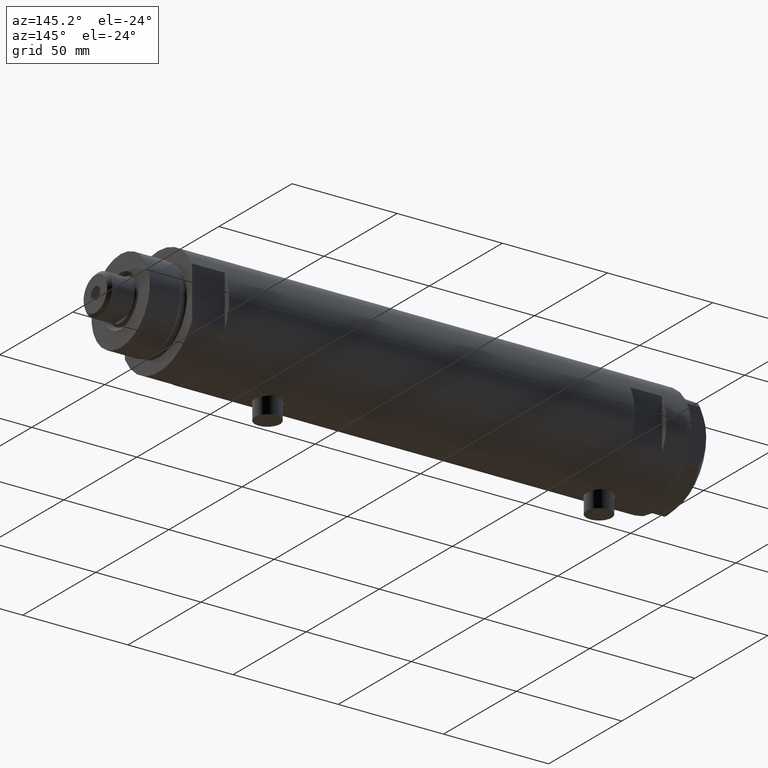
[diagram: clean part render]
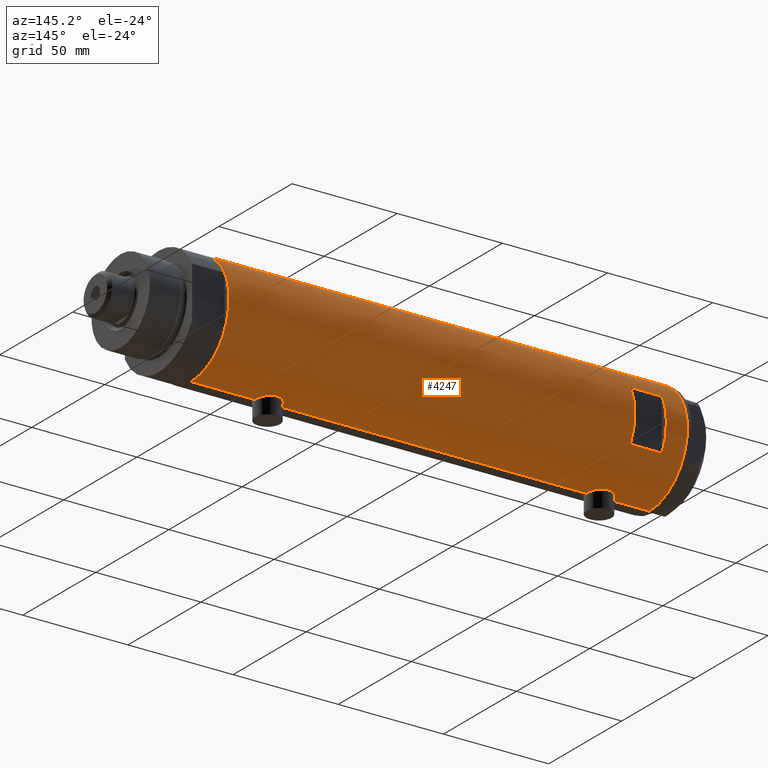
[diagram: same view with one face highlighted and labeled with its STEP entity id]
A machine part, auxiliary view. The second image highlights one B-rep face of the part: STEP entity #4247.
In plain terms, the highlighted cylindrical surface (partial cylindrical patch) has radius 26 mm, axis along (-1, -0, 0).
Its self-contained STEP definition (entity closure, byte-faithful):
#18 = CARTESIAN_POINT ( 'NONE',  ( 25.27545867390324474, 6.096774941222101951, 93.82477406957971766 ) ) ;
#21 = CARTESIAN_POINT ( 'NONE',  ( 26.00000000000000355, -3.975030973907779525E-20, 96.95000000000000284 ) ) ;
#42 = DIRECTION ( 'NONE',  ( 0.000000000000000000, 0.000000000000000000, 1.000000000000000000 ) ) ;
#49 = VERTEX_POINT ( 'NONE', #1653 ) ;
#50 = CARTESIAN_POINT ( 'NONE',  ( 25.59528664075983428, 4.573671112500310443, 83.50090496483274194 ) ) ;
#94 = CARTESIAN_POINT ( 'NONE',  ( 25.98255381630416849, 0.9836221648041321153, 96.88933098058195981 ) ) ;
#99 = ORIENTED_EDGE ( 'NONE', *, *, #4797, .F. ) ;
#133 = CARTESIAN_POINT ( 'NONE',  ( -25.99759026373432391, 0.4091325989570679389, 78.71000109955099333 ) ) ;
#153 = CARTESIAN_POINT ( 'NONE',  ( -25.43062364804611875, 5.412314182902751902, 81.81772351419066069 ) ) ;
#175 = B_SPLINE_CURVE_WITH_KNOTS ( 'NONE', 3,
 ( #3547, #180, #1290, #890, #3900, #861, #4341, #2826, #1362, #4686, #596, #529, #2093, #922, #3600, #1992, #2020, #4319, #1628, #501, #2350, #2372, #3175, #3946, #2415, #2045, #3525, #153, #1724, #4637, #1648, #1321, #2441, #3124, #4295, #943, #3971, #2395, #1271, #574, #3148, #133, #4661, #2066 ),
 .UNSPECIFIED., .F., .F.,
 ( 4, 2, 2, 2, 2, 2, 2, 2, 2, 2, 2, 2, 2, 2, 2, 2, 2, 2, 2, 2, 2, 4 ),
 ( 1.191872608207982896E-18, 0.001225774033668414415, 0.001838661050502624766, 0.002451548067336834901, 0.003677322101005254303, 0.004903096134673673272, 0.006128870168342093541, 0.007354644202010512943, 0.007967531218844704430, 0.008580418235678894182, 0.009806192269347313584, 0.01103196630301573472, 0.01225774033668415586, 0.01287062735351834561, 0.01348351437035253536, 0.01409640138718672858, 0.01470928840402092007, 0.01593506243768930131, 0.01716083647135768081, 0.01838661050502606725, 0.01899949752186025700, 0.01961238453869444676 ),
 .UNSPECIFIED. ) ;
#180 = CARTESIAN_POINT ( 'NONE',  ( -26.00000000000000711, 0.4145874687851191509, 91.20000000000001705 ) ) ;
#194 = CARTESIAN_POINT ( 'NONE',  ( -25.42927140605242542, 5.422776733968215801, -69.51556003986718224 ) ) ;
#216 = VERTEX_POINT ( 'NONE', #2630 ) ;
#221 = CARTESIAN_POINT ( 'NONE',  ( -25.96182217530152769, 1.422664245316465736, -66.56064726907608531 ) ) ;
#227 = CARTESIAN_POINT ( 'NONE',  ( 25.20855488770172315, 6.367749707222650990, -65.77997776959041687 ) ) ;
#239 = FACE_OUTER_BOUND ( 'NONE', #2896, .T. ) ;
#243 = DIRECTION ( 'NONE',  ( 0.000000000000000000, 1.000000000000000000, -4.803849625781927035E-15 ) ) ;
#252 = CARTESIAN_POINT ( 'NONE',  ( 25.17636585680005368, 6.493453152855892085, -65.98900750337199383 ) ) ;
#261 = LINE ( 'NONE', #3281, #3138 ) ;
#272 = CARTESIAN_POINT ( 'NONE',  ( 26.00000000000000355, 0.000000000000000000, 108.9500000000000028 ) ) ;
#280 = CARTESIAN_POINT ( 'NONE',  ( 24.96662810169869928, 7.257932614256882076, -67.79702690473266102 ) ) ;
#304 = CARTESIAN_POINT ( 'NONE',  ( -25.28673619335057055, 6.048783215285170378, -74.27550990348181870 ) ) ;
#335 = CARTESIAN_POINT ( 'NONE',  ( 26.00000000000001066, 0.2455784580650491045, -62.25000000000000000 ) ) ;
#361 = VERTEX_POINT ( 'NONE', #21 ) ;
#362 = VERTEX_POINT ( 'NONE', #2679 ) ;
#376 = CIRCLE ( 'NONE', #4138, 26.00000000000000355 ) ;
#379 = CARTESIAN_POINT ( 'NONE',  ( 25.78922176490237916, 3.335318700939514880, 82.71449431233524763 ) ) ;
#397 = CARTESIAN_POINT ( 'NONE',  ( 24.90976107960112529, 7.450765568638835212, 90.43882869351465104 ) ) ;
#401 = EDGE_CURVE ( 'NONE', #4355, #1130, #2631, .T. ) ;
#406 = CARTESIAN_POINT ( 'NONE',  ( -25.95208098418916975, 1.628413954368976846, -78.69806792170716392 ) ) ;
#416 = CARTESIAN_POINT ( 'NONE',  ( 25.03487248886523275, 7.018875226450804306, 86.79576782607934149 ) ) ;
#445 = CARTESIAN_POINT ( 'NONE',  ( 25.00820649268565532, 7.115348876445601434, 91.87184000475454582 ) ) ;
#446 = DIRECTION ( 'NONE',  ( 0.000000000000000000, 0.000000000000000000, 1.000000000000000000 ) ) ;
#453 = CARTESIAN_POINT ( 'NONE',  ( -25.72087293759780380, 3.814831448865738661, -77.61738294827860329 ) ) ;
#461 = CIRCLE ( 'NONE', #4782, 26.00000000000000355 ) ;
#464 = VERTEX_POINT ( 'NONE', #272 ) ;
#468 = CARTESIAN_POINT ( 'NONE',  ( 25.72868876879095978, 3.768709330223698473, 95.95267486870062612 ) ) ;
#501 = CARTESIAN_POINT ( 'NONE',  ( -25.24766879991037172, 6.209837761082654062, 85.76849569029695886 ) ) ;
#505 = CIRCLE ( 'NONE', #1372, 26.00000000000000355 ) ;
#529 = CARTESIAN_POINT ( 'NONE',  ( -25.57189498399054983, 4.707763994471525493, 89.08090281055548587 ) ) ;
#551 = DIRECTION ( 'NONE',  ( -0.000000000000000000, -0.000000000000000000, -1.000000000000000000 ) ) ;
#574 = CARTESIAN_POINT ( 'NONE',  ( -25.98057228346869607, 1.024901789261878138, 78.78119414145170651 ) ) ;
#583 = CARTESIAN_POINT ( 'NONE',  ( -26.00000000000001066, 0.4145874687851194285, -66.40000000000000568 ) ) ;
#596 = CARTESIAN_POINT ( 'NONE',  ( -25.67095236150574777, 4.133649689219788925, 89.65535228274261215 ) ) ;
#613 = CARTESIAN_POINT ( 'NONE',  ( -12.12435565298214080, 23.00000000000000355, 98.95000000000001705 ) ) ;
#614 = CARTESIAN_POINT ( 'NONE',  ( 24.90951684770587704, 7.451587374037550227, -70.73395604521196844 ) ) ;
#628 = VECTOR ( 'NONE', #1726, 1000.000000000000000 ) ;
#630 = DIRECTION ( 'NONE',  ( 0.000000000000000000, 4.625929269271486900E-15, 1.000000000000000000 ) ) ;
#638 = CARTESIAN_POINT ( 'NONE',  ( 25.72868876879095978, 3.768709330223699361, -63.24732513129934119 ) ) ;
#654 = CARTESIAN_POINT ( 'NONE',  ( -26.00000000000000355, 1.227111019500118713E-15, -66.40000000000000568 ) ) ;
#657 = CARTESIAN_POINT ( 'NONE',  ( -26.00000000000000355, 3.184077527325983904E-15, -78.90000000000000568 ) ) ;
#682 = CARTESIAN_POINT ( 'NONE',  ( -25.57189498399055694, 4.707763994471526381, -68.51909718944453687 ) ) ;
#687 = CARTESIAN_POINT ( 'NONE',  ( 25.08669247833291394, 6.831361936037332327, -66.64462260596206988 ) ) ;
#707 = CARTESIAN_POINT ( 'NONE',  ( 24.95233689475078265, 7.306396477445190385, -71.46103813146667960 ) ) ;
#725 = CARTESIAN_POINT ( 'NONE',  ( 25.88814720404044323, 2.420758939209245675, 82.34711713171545000 ) ) ;
#753 = CARTESIAN_POINT ( 'NONE',  ( 24.95233689475078975, 7.306396477445192161, 87.73896186853338008 ) ) ;
#774 = CARTESIAN_POINT ( 'NONE',  ( 25.38132706741445688, 5.649034551923790559, 84.49268047185954345 ) ) ;
#779 = CARTESIAN_POINT ( 'NONE',  ( -12.12435565298214080, 23.00000000000000355, -108.9500000000000028 ) ) ;
#796 = CARTESIAN_POINT ( 'NONE',  ( -26.00000000000000355, 3.184081677783118585E-15, -108.9500000000000028 ) ) ;
#800 = VERTEX_POINT ( 'NONE', #1119 ) ;
#803 = CARTESIAN_POINT ( 'NONE',  ( 24.97016856345952363, 7.245430721349229053, 87.49696959080610270 ) ) ;
#811 = CARTESIAN_POINT ( 'NONE',  ( -25.52275868012767646, 4.960454986366444885, -76.45761629406632665 ) ) ;
#834 = AXIS2_PLACEMENT_3D ( 'NONE', #1371, #2933, #3317 ) ;
#835 = ORIENTED_EDGE ( 'NONE', *, *, #1539, .F. ) ;
#840 = CARTESIAN_POINT ( 'NONE',  ( -25.36894112891956965, 5.694149517195237209, -75.23482505198309411 ) ) ;
#861 = CARTESIAN_POINT ( 'NONE',  ( -25.92257874449350652, 2.014648337067151296, 90.86996418363678174 ) ) ;
#875 = EDGE_CURVE ( 'NONE', #4535, #3039, #2618, .T. ) ;
#890 = CARTESIAN_POINT ( 'NONE',  ( -25.96182217530153480, 1.422664245316465959, 91.03935273092393743 ) ) ;
#922 = CARTESIAN_POINT ( 'NONE',  ( -25.42927140605242187, 5.422776733968214025, 88.08443996013284050 ) ) ;
#943 = CARTESIAN_POINT ( 'NONE',  ( -25.81206132723604796, 3.139065735901513055, 79.53021230639120631 ) ) ;
#983 = CARTESIAN_POINT ( 'NONE',  ( -25.72105193281917934, 3.813738527046908189, -67.68166308900568140 ) ) ;
#1010 = CARTESIAN_POINT ( 'NONE',  ( -25.24784248027028966, 6.209126813737962713, -73.47268161688060673 ) ) ;
#1015 = CARTESIAN_POINT ( 'NONE',  ( 25.38117076385347559, 5.641057083563609353, -64.80143420258154663 ) ) ;
#1039 = CARTESIAN_POINT ( 'NONE',  ( 25.63006864069251378, 4.375159448492150105, -75.84654411758884862 ) ) ;
#1100 = ORIENTED_EDGE ( 'NONE', *, *, #1456, .F. ) ;
#1113 = CARTESIAN_POINT ( 'NONE',  ( 26.00000000000000355, -3.975030973907779525E-20, 96.95000000000000284 ) ) ;
#1119 = CARTESIAN_POINT ( 'NONE',  ( -26.00000000000000355, 3.184081677783118585E-15, 108.9500000000000028 ) ) ;
#1130 = VERTEX_POINT ( 'NONE', #613 ) ;
#1187 = CARTESIAN_POINT ( 'NONE',  ( 25.17636585680005368, 6.493453152855889421, 93.21099249662803743 ) ) ;
#1198 = VERTEX_POINT ( 'NONE', #3036 ) ;
#1220 = CARTESIAN_POINT ( 'NONE',  ( -25.81206132723605862, 3.139065735901515275, -78.06978769360878800 ) ) ;
#1271 = CARTESIAN_POINT ( 'NONE',  ( -25.95208098418916975, 1.628413954368974625, 78.90193207829285882 ) ) ;
#1274 = DIRECTION ( 'NONE',  ( 0.000000000000000000, 0.000000000000000000, 1.000000000000000000 ) ) ;
#1290 = CARTESIAN_POINT ( 'NONE',  ( -25.99009688862344092, 0.8219492608955324409, 91.15915939226573528 ) ) ;
#1291 = DIRECTION ( 'NONE',  ( 1.000000000000000000, 0.000000000000000000, 0.000000000000000000 ) ) ;
#1306 = CARTESIAN_POINT ( 'NONE',  ( 26.00000000000000355, 0.000000000000000000, -108.9500000000000028 ) ) ;
#1321 = CARTESIAN_POINT ( 'NONE',  ( -25.57167265924275057, 4.701795585128869526, 80.82723711689963864 ) ) ;
#1356 = CARTESIAN_POINT ( 'NONE',  ( -26.00000000000000355, 1.227111019500118713E-15, 91.20000000000000284 ) ) ;
#1362 = CARTESIAN_POINT ( 'NONE',  ( -25.81251897318926680, 3.135439098787735190, 90.37199178085172946 ) ) ;
#1365 = ORIENTED_EDGE ( 'NONE', *, *, #4590, .T. ) ;
#1371 = CARTESIAN_POINT ( 'NONE',  ( 0.000000000000000000, 0.000000000000000000, -108.9500000000000028 ) ) ;
#1372 = AXIS2_PLACEMENT_3D ( 'NONE', #3292, #3240, #1426 ) ;
#1385 = CARTESIAN_POINT ( 'NONE',  ( 25.27545867390323764, 6.096774941222101063, -65.37522593042032781 ) ) ;
#1426 = DIRECTION ( 'NONE',  ( 1.000000000000000000, 0.000000000000000000, 0.000000000000000000 ) ) ;
#1456 = EDGE_CURVE ( 'NONE', #464, #800, #505, .T. ) ;
#1458 = CARTESIAN_POINT ( 'NONE',  ( 26.00000000000000355, -3.975028449552882818E-20, -62.24999999999999289 ) ) ;
#1475 = DIRECTION ( 'NONE',  ( 0.000000000000000000, 0.000000000000000000, 1.000000000000000000 ) ) ;
#1503 = CARTESIAN_POINT ( 'NONE',  ( 25.99652140603930306, 0.4914164889130540614, 96.93796820480460497 ) ) ;
#1517 = LINE ( 'NONE', #796, #1691 ) ;
#1524 = CARTESIAN_POINT ( 'NONE',  ( 25.52465069878074644, 4.952713637311411787, 83.81255139184743541 ) ) ;
#1537 = CARTESIAN_POINT ( 'NONE',  ( 26.00000000000000355, 1.142179864233347086E-15, 81.94999999999998863 ) ) ;
#1539 = EDGE_CURVE ( 'NONE', #49, #4355, #4205, .T. ) ;
#1563 = EDGE_CURVE ( 'NONE', #362, #3869, #3224, .T. ) ;
#1572 = CARTESIAN_POINT ( 'NONE',  ( 26.00000000000000355, 1.142179864233347086E-15, 81.94999999999998863 ) ) ;
#1582 = CARTESIAN_POINT ( 'NONE',  ( -26.00000000000000355, 3.184081677783118585E-15, -108.9500000000000028 ) ) ;
#1593 = CARTESIAN_POINT ( 'NONE',  ( 25.99999999999999289, 0.2455784580650480498, 96.94999999999996021 ) ) ;
#1612 = CARTESIAN_POINT ( 'NONE',  ( 26.00000000000000355, 3.155021778966484351E-16, -77.25000000000001421 ) ) ;
#1628 = CARTESIAN_POINT ( 'NONE',  ( -25.27696731428695998, 6.089059008147561514, 86.37416306959481460 ) ) ;
#1648 = CARTESIAN_POINT ( 'NONE',  ( -25.52275868012768356, 4.960454986366445773, 81.14238370593368188 ) ) ;
#1653 = CARTESIAN_POINT ( 'NONE',  ( 12.12435565298213724, 23.00000000000000355, 83.95000000000003126 ) ) ;
#1687 = EDGE_CURVE ( 'NONE', #2318, #2513, #175, .T. ) ;
#1691 = VECTOR ( 'NONE', #42, 1000.000000000000000 ) ;
#1706 = FACE_BOUND ( 'NONE', #3592, .T. ) ;
#1709 = EDGE_CURVE ( 'NONE', #4835, #49, #3228, .T. ) ;
#1724 = CARTESIAN_POINT ( 'NONE',  ( -25.45277932469920046, 5.307477387851101014, 81.64327199834687576 ) ) ;
#1726 = DIRECTION ( 'NONE',  ( 0.000000000000000000, 0.000000000000000000, 1.000000000000000000 ) ) ;
#1736 = CARTESIAN_POINT ( 'NONE',  ( -25.27696731428695642, 6.089059008147561514, -71.22583693040516550 ) ) ;
#1770 = CARTESIAN_POINT ( 'NONE',  ( 25.93077501166307641, 1.957027822413552220, -62.49302141437592439 ) ) ;
#1798 = CARTESIAN_POINT ( 'NONE',  ( 25.98569222077104257, 0.9879514382926418703, -77.20081846687564564 ) ) ;
#1819 = CARTESIAN_POINT ( 'NONE',  ( 25.31017500740584580, 5.951503630041877102, -65.17950407362599208 ) ) ;
#1859 = CARTESIAN_POINT ( 'NONE',  ( 25.94484652078419273, 1.709678645892025228, 82.14334653240821638 ) ) ;
#1888 = CARTESIAN_POINT ( 'NONE',  ( -25.67176285215958487, 4.128807479817783843, -77.35991598451124673 ) ) ;
#1903 = CARTESIAN_POINT ( 'NONE',  ( 25.97197502027376714, 1.230965554787594840, 96.85240824498376355 ) ) ;
#1914 = CARTESIAN_POINT ( 'NONE',  ( -25.45277932469920756, 5.307477387851102790, -75.95672800165310434 ) ) ;
#1933 = CARTESIAN_POINT ( 'NONE',  ( 25.98569222077104968, 0.9879514382926425364, 81.99918153312438562 ) ) ;
#1940 = CARTESIAN_POINT ( 'NONE',  ( -25.98057228346869607, 1.024901789261876139, -78.81880585854824517 ) ) ;
#1954 = CARTESIAN_POINT ( 'NONE',  ( 25.78997056644825037, 3.329333406239041615, 96.18834808433848593 ) ) ;
#1965 = CARTESIAN_POINT ( 'NONE',  ( -26.00000000000000355, 3.184077527325983904E-15, -78.90000000000000568 ) ) ;
#1992 = CARTESIAN_POINT ( 'NONE',  ( -25.33346170681504361, 5.849967696906720249, 87.15947052099507175 ) ) ;
#2020 = CARTESIAN_POINT ( 'NONE',  ( -25.31738333113901263, 5.918941409682878074, 86.96757922472318114 ) ) ;
#2045 = CARTESIAN_POINT ( 'NONE',  ( -25.36894112891957320, 5.694149517195235433, 82.36517494801691441 ) ) ;
#2066 = CARTESIAN_POINT ( 'NONE',  ( -26.00000000000000355, 3.184077527313362130E-15, 78.69999999999998863 ) ) ;
#2093 = CARTESIAN_POINT ( 'NONE',  ( -25.52242378584899640, 4.965907353613394193, 88.76719602921738783 ) ) ;
#2110 = CARTESIAN_POINT ( 'NONE',  ( 25.00820649268564466, 7.115348876445598769, -67.32815999524548545 ) ) ;
#2130 = CARTESIAN_POINT ( 'NONE',  ( -25.85406084573620689, 2.777003695811651962, -67.03587158673903446 ) ) ;
#2136 = CARTESIAN_POINT ( 'NONE',  ( 25.78997056644823971, 3.329333406239046056, -63.01165191566149559 ) ) ;
#2143 = LINE ( 'NONE', #2799, #628 ) ;
#2161 = CARTESIAN_POINT ( 'NONE',  ( 25.17424625143662098, 6.506691718592107598, -73.51241626033730370 ) ) ;
#2183 = CARTESIAN_POINT ( 'NONE',  ( 25.98255381630415073, 0.9836221648041368892, -62.31066901941806435 ) ) ;
#2202 = CARTESIAN_POINT ( 'NONE',  ( 25.72923282622328500, 3.765147152416744802, -76.25485575784709624 ) ) ;
#2244 = CARTESIAN_POINT ( 'NONE',  ( 25.30960479024496479, 5.958491152160530824, 84.86860322320038108 ) ) ;
#2266 = CARTESIAN_POINT ( 'NONE',  ( 25.31017500740585291, 5.951503630041879767, 94.02049592637402498 ) ) ;
#2278 = CARTESIAN_POINT ( 'NONE',  ( -12.12435565298214080, 23.00000000000000355, 83.95000000000003126 ) ) ;
#2288 = CARTESIAN_POINT ( 'NONE',  ( 26.00000000000000000, 0.4983968644076025023, 81.95000000000000284 ) ) ;
#2313 = EDGE_CURVE ( 'NONE', #3039, #216, #2719, .T. ) ;
#2318 = VERTEX_POINT ( 'NONE', #1356 ) ;
#2319 = CARTESIAN_POINT ( 'NONE',  ( 25.41763780493359803, 5.474943943663465262, 94.58176313788933953 ) ) ;
#2328 = CARTESIAN_POINT ( 'NONE',  ( -25.92432690655987670, 2.018143994254067319, -78.57929422822714116 ) ) ;
#2350 = CARTESIAN_POINT ( 'NONE',  ( -25.23766275406408965, 6.249830297096023557, 85.36191904555117560 ) ) ;
#2360 = DIRECTION ( 'NONE',  ( 1.000000000000000000, -5.329070518200751394E-15, 0.000000000000000000 ) ) ;
#2372 = CARTESIAN_POINT ( 'NONE',  ( -25.23757896588369576, 6.250168635417627350, 84.54324691589501128 ) ) ;
#2395 = CARTESIAN_POINT ( 'NONE',  ( -25.92432690655987315, 2.018143994254077978, 79.02070577177285315 ) ) ;
#2415 = CARTESIAN_POINT ( 'NONE',  ( -25.31518616157687518, 5.930210831981638009, 82.93412882792975438 ) ) ;
#2441 = CARTESIAN_POINT ( 'NONE',  ( -25.59680708126579773, 4.563450671387936808, 80.67456050020027192 ) ) ;
#2455 = CARTESIAN_POINT ( 'NONE',  ( -25.33346170681504361, 5.849967696906721137, -70.44052947900497941 ) ) ;
#2462 = CARTESIAN_POINT ( 'NONE',  ( 25.86510134953875450, 2.654921787384016518, -76.76867061694905203 ) ) ;
#2476 = CARTESIAN_POINT ( 'NONE',  ( -25.31518616157687518, 5.930210831981638009, -74.66587117207023994 ) ) ;
#2482 = CARTESIAN_POINT ( 'NONE',  ( 25.03487248886523275, 7.018875226450806082, -72.40423217392066135 ) ) ;
#2510 = CARTESIAN_POINT ( 'NONE',  ( 25.48882460966381203, 5.133289275481222269, -75.22343523597911030 ) ) ;
#2513 = VERTEX_POINT ( 'NONE', #3189 ) ;
#2534 = VECTOR ( 'NONE', #446, 1000.000000000000000 ) ;
#2535 = CARTESIAN_POINT ( 'NONE',  ( -25.67095236150574067, 4.133649689219787149, -67.94464771725739638 ) ) ;
#2543 = CARTESIAN_POINT ( 'NONE',  ( 25.11254978876589306, 6.737777305585169074, -73.08025351746414344 ) ) ;
#2566 = VECTOR ( 'NONE', #1274, 1000.000000000000000 ) ;
#2579 = ORIENTED_EDGE ( 'NONE', *, *, #3647, .F. ) ;
#2603 = AXIS2_PLACEMENT_3D ( 'NONE', #3186, #630, #243 ) ;
#2618 = LINE ( 'NONE', #4839, #3881 ) ;
#2630 = CARTESIAN_POINT ( 'NONE',  ( 26.00000000000000355, -3.975028449552882818E-20, -62.24999999999999289 ) ) ;
#2631 = LINE ( 'NONE', #779, #2534 ) ;
#2653 = CARTESIAN_POINT ( 'NONE',  ( 24.89471231507666715, 7.500219916954801391, 89.93878226883029470 ) ) ;
#2661 = CARTESIAN_POINT ( 'NONE',  ( -25.43062364804611875, 5.412314182902751014, -75.78227648580933362 ) ) ;
#2679 = CARTESIAN_POINT ( 'NONE',  ( -26.00000000000000355, 1.227111019500118713E-15, -66.40000000000000568 ) ) ;
#2688 = CARTESIAN_POINT ( 'NONE',  ( -25.38875076695533650, 5.605452563035129288, -75.42185900824102873 ) ) ;
#2689 = B_SPLINE_CURVE_WITH_KNOTS ( 'NONE', 3,
 ( #1572, #2288, #1933, #1859, #4868, #725, #3085, #379, #2992, #3807, #50, #1524, #4136, #774, #2244, #4578, #4160, #416, #3837, #803, #753, #3758, #3740, #2653, #397, #3394, #445, #4209, #3040, #1187, #4552, #18, #2266, #3441, #2319, #3373, #3062, #468, #1954, #3465, #3014, #1903, #94, #1503, #1593, #1113 ),
 .UNSPECIFIED., .F., .F.,
 ( 4, 2, 2, 2, 2, 2, 2, 2, 2, 2, 2, 2, 2, 2, 2, 2, 2, 2, 2, 2, 2, 2, 4 ),
 ( 1.109123384753006195E-18, 0.001473395154583141816, 0.002210092731874708279, 0.002946790309166274525, 0.004420185463749423498, 0.005156883041040996249, 0.005893580618332569000, 0.007366975772915686747, 0.008840370927498805362, 0.009577068504790344286, 0.01031376608208188494, 0.01178716123666492463, 0.01326055639124796431, 0.01473395154583100573, 0.01547064912312250649, 0.01620734670041400205, 0.01694404427770550628, 0.01768074185499700357, 0.01915413700957997734, 0.02062753216416295110, 0.02210092731874592140, 0.02283762489603740828, 0.02357432247332889169 ),
 .UNSPECIFIED. ) ;
#2715 = CARTESIAN_POINT ( 'NONE',  ( -25.49884629689153215, 5.081547904122039938, -76.29439805696090104 ) ) ;
#2719 = B_SPLINE_CURVE_WITH_KNOTS ( 'NONE', 3,
 ( #2893, #3300, #1798, #4411, #4747, #4801, #2462, #4724, #2202, #1039, #2921, #2841, #2510, #4434, #4360, #2161, #2543, #2482, #4090, #4455, #707, #614, #3645, #4068, #3325, #280, #2110, #687, #2870, #252, #227, #1385, #1819, #1015, #4771, #4018, #4823, #638, #2136, #4042, #1770, #3274, #2183, #3696, #335, #1458 ),
 .UNSPECIFIED., .F., .F.,
 ( 4, 2, 2, 2, 2, 2, 2, 2, 2, 2, 2, 2, 2, 2, 2, 2, 2, 2, 2, 2, 2, 2, 4 ),
 ( 3.063710492572517602E-19, 0.001473395154583137480, 0.002210092731874702641, 0.002946790309166267153, 0.004420185463749410487, 0.005156883041040983238, 0.005893580618332555990, 0.007366975772915672870, 0.008840370927498791484, 0.009577068504790330408, 0.01031376608208186933, 0.01178716123666491075, 0.01326055639124795044, 0.01473395154583099012, 0.01547064912312249088, 0.01620734670041399164, 0.01694404427770549240, 0.01768074185499699316, 0.01915413700957996693, 0.02062753216416294069, 0.02210092731874591793, 0.02283762489603740134, 0.02357432247332888822 ),
 .UNSPECIFIED. ) ;
#2728 = ORIENTED_EDGE ( 'NONE', *, *, #4789, .T. ) ;
#2799 = CARTESIAN_POINT ( 'NONE',  ( -26.00000000000000355, 3.184081677783118585E-15, -108.9500000000000028 ) ) ;
#2808 = CARTESIAN_POINT ( 'NONE',  ( -25.90661719257679252, 2.209805098346972585, -66.80011254218482009 ) ) ;
#2826 = CARTESIAN_POINT ( 'NONE',  ( -25.85406084573621754, 2.777003695811651962, 90.56412841326093144 ) ) ;
#2836 = CARTESIAN_POINT ( 'NONE',  ( -25.99009688862344092, 0.8219492608955326629, -66.44084060773425904 ) ) ;
#2841 = CARTESIAN_POINT ( 'NONE',  ( 25.52465069878074644, 4.952713637311410011, -75.38744860815259585 ) ) ;
#2862 = CARTESIAN_POINT ( 'NONE',  ( -25.23766275406408965, 6.249830297096023557, -72.23808095444880450 ) ) ;
#2870 = CARTESIAN_POINT ( 'NONE',  ( 25.11550258961939264, 6.725017566862044660, -66.42071522193982958 ) ) ;
#2886 = CARTESIAN_POINT ( 'NONE',  ( -25.92257874449351718, 2.014648337067152184, -66.73003581636324100 ) ) ;
#2893 = CARTESIAN_POINT ( 'NONE',  ( 26.00000000000000355, 3.155021778966484351E-16, -77.25000000000001421 ) ) ;
#2896 = EDGE_LOOP ( 'NONE', ( #3523, #1365, #4180, #3261, #3546, #2728, #1100, #2579, #3227, #99, #4033, #3146 ) ) ;
#2921 = CARTESIAN_POINT ( 'NONE',  ( 25.59528664075983428, 4.573671112500307778, -75.69909503516727511 ) ) ;
#2933 = DIRECTION ( 'NONE',  ( 0.000000000000000000, 0.000000000000000000, 1.000000000000000000 ) ) ;
#2937 = ORIENTED_EDGE ( 'NONE', *, *, #3677, .F. ) ;
#2980 = EDGE_CURVE ( 'NONE', #362, #2513, #1517, .T. ) ;
#2992 = CARTESIAN_POINT ( 'NONE',  ( 25.72923282622329211, 3.765147152416750131, 82.94514424215292081 ) ) ;
#3014 = CARTESIAN_POINT ( 'NONE',  ( 25.93077501166307997, 1.957027822413550000, 96.70697858562412819 ) ) ;
#3036 = CARTESIAN_POINT ( 'NONE',  ( -26.00000000000000355, 3.184081677783118585E-15, -108.9500000000000028 ) ) ;
#3039 = VERTEX_POINT ( 'NONE', #1612 ) ;
#3040 = CARTESIAN_POINT ( 'NONE',  ( 25.11550258961939619, 6.725017566862045548, 92.77928477806018748 ) ) ;
#3062 = CARTESIAN_POINT ( 'NONE',  ( 25.59685363299822569, 4.579266302355758711, 95.40972068102654191 ) ) ;
#3072 = CARTESIAN_POINT ( 'NONE',  ( -25.57167265924274702, 4.701795585128869526, -76.77276288310035568 ) ) ;
#3085 = CARTESIAN_POINT ( 'NONE',  ( 25.86510134953875450, 2.654921787384018739, 82.43132938305093660 ) ) ;
#3099 = CARTESIAN_POINT ( 'NONE',  ( -26.00000000000000355, 0.2043916521039003675, -78.90000000000000568 ) ) ;
#3124 = CARTESIAN_POINT ( 'NONE',  ( -25.67176285215957776, 4.128807479817784731, 80.24008401548879021 ) ) ;
#3138 = VECTOR ( 'NONE', #4689, 1000.000000000000000 ) ;
#3139 = LINE ( 'NONE', #1306, #4298 ) ;
#3146 = ORIENTED_EDGE ( 'NONE', *, *, #875, .F. ) ;
#3148 = CARTESIAN_POINT ( 'NONE',  ( -25.98789693408479096, 0.8193301824841990877, 78.75051019734652868 ) ) ;
#3175 = CARTESIAN_POINT ( 'NONE',  ( -25.24784248027028966, 6.209126813737962713, 84.12731838311941601 ) ) ;
#3186 = CARTESIAN_POINT ( 'NONE',  ( 0.000000000000000000, 0.000000000000000000, 83.95000000000011653 ) ) ;
#3189 = CARTESIAN_POINT ( 'NONE',  ( -26.00000000000000355, 3.184077527313362130E-15, 78.69999999999998863 ) ) ;
#3224 = B_SPLINE_CURVE_WITH_KNOTS ( 'NONE', 3,
 ( #654, #583, #2836, #221, #3667, #2886, #2808, #2130, #4402, #983, #2535, #682, #3560, #194, #4352, #2455, #3610, #4697, #1736, #4035, #2862, #4379, #1010, #304, #2476, #840, #2688, #2661, #1914, #2715, #811, #3072, #4509, #1888, #453, #1220, #3788, #2328, #406, #1940, #4537, #3767, #3099, #1965 ),
 .UNSPECIFIED., .F., .F.,
 ( 4, 2, 2, 2, 2, 2, 2, 2, 2, 2, 2, 2, 2, 2, 2, 2, 2, 2, 2, 2, 2, 4 ),
 ( 1.191872608207982896E-18, 0.001225774033668401188, 0.001838661050502596794, 0.002451548067336792400, 0.003677322101005198792, 0.004903096134673604750, 0.006128870168342011142, 0.007354644202010417534, 0.007967531218844622898, 0.008580418235678826527, 0.009806192269347190418, 0.01103196630301555604, 0.01225774033668391994, 0.01287062735351812356, 0.01348351437035232546, 0.01409640138718652735, 0.01470928840402073098, 0.01593506243768915906, 0.01716083647135759060, 0.01838661050502601868, 0.01899949752186023619, 0.01961238453869445023 ),
 .UNSPECIFIED. ) ;
#3227 = ORIENTED_EDGE ( 'NONE', *, *, #3583, .F. ) ;
#3228 = LINE ( 'NONE', #3921, #3342 ) ;
#3238 = VERTEX_POINT ( 'NONE', #1537 ) ;
#3240 = DIRECTION ( 'NONE',  ( 0.000000000000000000, 0.000000000000000000, 1.000000000000000000 ) ) ;
#3261 = ORIENTED_EDGE ( 'NONE', *, *, #2980, .T. ) ;
#3274 = CARTESIAN_POINT ( 'NONE',  ( 25.97197502027376004, 1.230965554787593730, -62.34759175501625350 ) ) ;
#3281 = CARTESIAN_POINT ( 'NONE',  ( 26.00000000000000355, 0.000000000000000000, -108.9500000000000028 ) ) ;
#3292 = CARTESIAN_POINT ( 'NONE',  ( 0.000000000000000000, 0.000000000000000000, 108.9500000000000028 ) ) ;
#3300 = CARTESIAN_POINT ( 'NONE',  ( 26.00000000000000355, 0.4983968644076023913, -77.25000000000000000 ) ) ;
#3317 = DIRECTION ( 'NONE',  ( 1.000000000000000000, 0.000000000000000000, 0.000000000000000000 ) ) ;
#3325 = CARTESIAN_POINT ( 'NONE',  ( 24.90976107960112529, 7.450765568638834324, -68.76117130648536602 ) ) ;
#3342 = VECTOR ( 'NONE', #551, 1000.000000000000000 ) ;
#3373 = CARTESIAN_POINT ( 'NONE',  ( 25.52590365620542912, 4.955152228772157663, 95.10123727588242559 ) ) ;
#3394 = CARTESIAN_POINT ( 'NONE',  ( 24.96662810169870284, 7.257932614256881187, 91.40297309526737024 ) ) ;
#3405 = ORIENTED_EDGE ( 'NONE', *, *, #1709, .F. ) ;
#3441 = CARTESIAN_POINT ( 'NONE',  ( 25.38117076385347204, 5.641057083563605801, 94.39856579741848464 ) ) ;
#3451 = LINE ( 'NONE', #1582, #2566 ) ;
#3465 = CARTESIAN_POINT ( 'NONE',  ( 25.89067367629247229, 2.424883365422557002, 96.56405204505172435 ) ) ;
#3523 = ORIENTED_EDGE ( 'NONE', *, *, #4609, .T. ) ;
#3525 = CARTESIAN_POINT ( 'NONE',  ( -25.38875076695534361, 5.605452563035131064, 82.17814099175892295 ) ) ;
#3546 = ORIENTED_EDGE ( 'NONE', *, *, #1687, .F. ) ;
#3547 = CARTESIAN_POINT ( 'NONE',  ( -26.00000000000000355, 1.227111019500118713E-15, 91.20000000000000284 ) ) ;
#3560 = CARTESIAN_POINT ( 'NONE',  ( -25.52242378584899640, 4.965907353613394193, -68.83280397078264912 ) ) ;
#3583 = EDGE_CURVE ( 'NONE', #3238, #361, #2689, .T. ) ;
#3592 = EDGE_LOOP ( 'NONE', ( #3750, #835, #3405, #2937 ) ) ;
#3600 = CARTESIAN_POINT ( 'NONE',  ( -25.38675822915647728, 5.615881323213574028, 87.72306781662007324 ) ) ;
#3610 = CARTESIAN_POINT ( 'NONE',  ( -25.31738333113900907, 5.918941409682878074, -70.63242077527678475 ) ) ;
#3645 = CARTESIAN_POINT ( 'NONE',  ( 24.89484527721568696, 7.499778575171907491, -70.24550805482940063 ) ) ;
#3647 = EDGE_CURVE ( 'NONE', #361, #464, #3139, .T. ) ;
#3667 = CARTESIAN_POINT ( 'NONE',  ( -25.95015815577422558, 1.621168830448743048, -66.61041429560181371 ) ) ;
#3677 = EDGE_CURVE ( 'NONE', #1130, #4835, #376, .T. ) ;
#3696 = CARTESIAN_POINT ( 'NONE',  ( 25.99652140603931727, 0.4914164889130587244, -62.26203179519543340 ) ) ;
#3740 = CARTESIAN_POINT ( 'NONE',  ( 24.89484527721567986, 7.499778575171907491, 88.95449194517063063 ) ) ;
#3750 = ORIENTED_EDGE ( 'NONE', *, *, #401, .F. ) ;
#3758 = CARTESIAN_POINT ( 'NONE',  ( 24.90951684770588059, 7.451587374037549338, 88.46604395478804861 ) ) ;
#3767 = CARTESIAN_POINT ( 'NONE',  ( -25.99759026373432391, 0.4091325989570675503, -78.88999890044902941 ) ) ;
#3788 = CARTESIAN_POINT ( 'NONE',  ( -25.85449082491265571, 2.772892880050684017, -78.26609297485326522 ) ) ;
#3807 = CARTESIAN_POINT ( 'NONE',  ( 25.63006864069250668, 4.375159448492152769, 83.35345588241116843 ) ) ;
#3837 = CARTESIAN_POINT ( 'NONE',  ( 25.01140519645288762, 7.101774040639633689, 87.02607764299175130 ) ) ;
#3847 = CARTESIAN_POINT ( 'NONE',  ( 0.000000000000000000, 0.000000000000000000, -108.9500000000000028 ) ) ;
#3864 = CARTESIAN_POINT ( 'NONE',  ( 0.000000000000000000, 0.000000000000000000, 98.95000000000001705 ) ) ;
#3869 = VERTEX_POINT ( 'NONE', #657 ) ;
#3881 = VECTOR ( 'NONE', #1475, 1000.000000000000000 ) ;
#3900 = CARTESIAN_POINT ( 'NONE',  ( -25.95015815577422913, 1.621168830448742826, 90.98958570439819482 ) ) ;
#3921 = CARTESIAN_POINT ( 'NONE',  ( 12.12435565298214080, 23.00000000000000355, -108.9500000000000028 ) ) ;
#3946 = CARTESIAN_POINT ( 'NONE',  ( -25.28673619335055278, 6.048783215285170378, 83.32449009651818983 ) ) ;
#3971 = CARTESIAN_POINT ( 'NONE',  ( -25.85449082491264150, 2.772892880050696007, 79.33390702514675752 ) ) ;
#4018 = CARTESIAN_POINT ( 'NONE',  ( 25.52590365620542912, 4.955152228772157663, -64.09876272411760567 ) ) ;
#4033 = ORIENTED_EDGE ( 'NONE', *, *, #2313, .F. ) ;
#4035 = CARTESIAN_POINT ( 'NONE',  ( -25.24766879991036816, 6.209837761082653174, -71.83150430970304967 ) ) ;
#4042 = CARTESIAN_POINT ( 'NONE',  ( 25.89067367629246164, 2.424883365422559223, -62.63594795494831402 ) ) ;
#4068 = CARTESIAN_POINT ( 'NONE',  ( 24.89471231507667071, 7.500219916954801391, -69.26121773116975078 ) ) ;
#4090 = CARTESIAN_POINT ( 'NONE',  ( 25.01140519645288407, 7.101774040639634578, -72.17392235700825154 ) ) ;
#4124 = CARTESIAN_POINT ( 'NONE',  ( 12.12435565298214080, 23.00000000000000355, 98.95000000000001705 ) ) ;
#4136 = CARTESIAN_POINT ( 'NONE',  ( 25.48882460966380847, 5.133289275481220493, 83.97656476402089254 ) ) ;
#4138 = AXIS2_PLACEMENT_3D ( 'NONE', #3864, #4281, #2360 ) ;
#4160 = CARTESIAN_POINT ( 'NONE',  ( 25.11254978876589661, 6.737777305585169962, 86.11974648253587361 ) ) ;
#4180 = ORIENTED_EDGE ( 'NONE', *, *, #1563, .F. ) ;
#4205 = CIRCLE ( 'NONE', #2603, 26.00000000000000355 ) ;
#4209 = CARTESIAN_POINT ( 'NONE',  ( 25.08669247833291749, 6.831361936037331439, 92.55537739403790454 ) ) ;
#4247 = ADVANCED_FACE ( 'NONE', ( #1706, #239 ), #4400, .T. ) ;
#4260 = DIRECTION ( 'NONE',  ( 0.000000000000000000, 0.000000000000000000, 1.000000000000000000 ) ) ;
#4281 = DIRECTION ( 'NONE',  ( -0.000000000000000000, -0.000000000000000000, -1.000000000000000000 ) ) ;
#4295 = CARTESIAN_POINT ( 'NONE',  ( -25.72087293759779669, 3.814831448865735997, 79.98261705172140523 ) ) ;
#4298 = VECTOR ( 'NONE', #4260, 1000.000000000000000 ) ;
#4319 = CARTESIAN_POINT ( 'NONE',  ( -25.28915991580760192, 6.038390257328910771, 86.57552651146907863 ) ) ;
#4341 = CARTESIAN_POINT ( 'NONE',  ( -25.90661719257679607, 2.209805098346973029, 90.79988745781523107 ) ) ;
#4352 = CARTESIAN_POINT ( 'NONE',  ( -25.38675822915647728, 5.615881323213574028, -69.87693218337989265 ) ) ;
#4355 = VERTEX_POINT ( 'NONE', #2278 ) ;
#4360 = CARTESIAN_POINT ( 'NONE',  ( 25.30960479024496834, 5.958491152160531712, -74.33139677679966439 ) ) ;
#4379 = CARTESIAN_POINT ( 'NONE',  ( -25.23757896588369931, 6.250168635417630014, -73.05675308410499724 ) ) ;
#4400 = CYLINDRICAL_SURFACE ( 'NONE', #834, 26.00000000000000355 ) ;
#4402 = CARTESIAN_POINT ( 'NONE',  ( -25.81251897318926325, 3.135439098787735190, -67.22800821914826486 ) ) ;
#4411 = CARTESIAN_POINT ( 'NONE',  ( 25.94484652078418208, 1.709678645892024340, -77.05665346759174383 ) ) ;
#4434 = CARTESIAN_POINT ( 'NONE',  ( 25.38132706741445688, 5.649034551923791447, -74.70731952814048782 ) ) ;
#4455 = CARTESIAN_POINT ( 'NONE',  ( 24.97016856345951297, 7.245430721349229941, -71.70303040919394277 ) ) ;
#4509 = CARTESIAN_POINT ( 'NONE',  ( -25.59680708126579773, 4.563450671387937696, -76.92543949979970819 ) ) ;
#4535 = VERTEX_POINT ( 'NONE', #4860 ) ;
#4537 = CARTESIAN_POINT ( 'NONE',  ( -25.98789693408478740, 0.8193301824842001979, -78.84948980265349405 ) ) ;
#4552 = CARTESIAN_POINT ( 'NONE',  ( 25.20855488770171604, 6.367749707222649214, 93.42002223040957176 ) ) ;
#4578 = CARTESIAN_POINT ( 'NONE',  ( 25.17424625143662809, 6.506691718592108487, 85.68758373966277020 ) ) ;
#4589 = DIRECTION ( 'NONE',  ( 0.000000000000000000, 0.000000000000000000, 1.000000000000000000 ) ) ;
#4590 = EDGE_CURVE ( 'NONE', #1198, #3869, #3451, .T. ) ;
#4609 = EDGE_CURVE ( 'NONE', #4535, #1198, #461, .T. ) ;
#4637 = CARTESIAN_POINT ( 'NONE',  ( -25.49884629689154281, 5.081547904122039938, 81.30560194303910748 ) ) ;
#4661 = CARTESIAN_POINT ( 'NONE',  ( -26.00000000000000000, 0.2043916521039007284, 78.69999999999998863 ) ) ;
#4686 = CARTESIAN_POINT ( 'NONE',  ( -25.72105193281917579, 3.813738527046907745, 89.91833691099431292 ) ) ;
#4689 = DIRECTION ( 'NONE',  ( 0.000000000000000000, 0.000000000000000000, 1.000000000000000000 ) ) ;
#4697 = CARTESIAN_POINT ( 'NONE',  ( -25.28915991580760192, 6.038390257328910771, -71.02447348853092990 ) ) ;
#4724 = CARTESIAN_POINT ( 'NONE',  ( 25.78922176490238627, 3.335318700939514436, -76.48550568766478364 ) ) ;
#4747 = CARTESIAN_POINT ( 'NONE',  ( 25.92799636947105313, 1.948138538329398539, -76.99677687788214087 ) ) ;
#4771 = CARTESIAN_POINT ( 'NONE',  ( 25.41763780493360869, 5.474943943663467039, -64.61823686211067752 ) ) ;
#4782 = AXIS2_PLACEMENT_3D ( 'NONE', #3847, #4589, #1291 ) ;
#4789 = EDGE_CURVE ( 'NONE', #2318, #800, #2143, .T. ) ;
#4797 = EDGE_CURVE ( 'NONE', #216, #3238, #261, .T. ) ;
#4801 = CARTESIAN_POINT ( 'NONE',  ( 25.88814720404043968, 2.420758939209245231, -76.85288286828455284 ) ) ;
#4823 = CARTESIAN_POINT ( 'NONE',  ( 25.59685363299823280, 4.579266302355757823, -63.79027931897347514 ) ) ;
#4835 = VERTEX_POINT ( 'NONE', #4124 ) ;
#4839 = CARTESIAN_POINT ( 'NONE',  ( 26.00000000000000355, 0.000000000000000000, -108.9500000000000028 ) ) ;
#4860 = CARTESIAN_POINT ( 'NONE',  ( 26.00000000000000355, 0.000000000000000000, -108.9500000000000028 ) ) ;
#4868 = CARTESIAN_POINT ( 'NONE',  ( 25.92799636947105668, 1.948138538329400093, 82.20322312211784777 ) ) ;